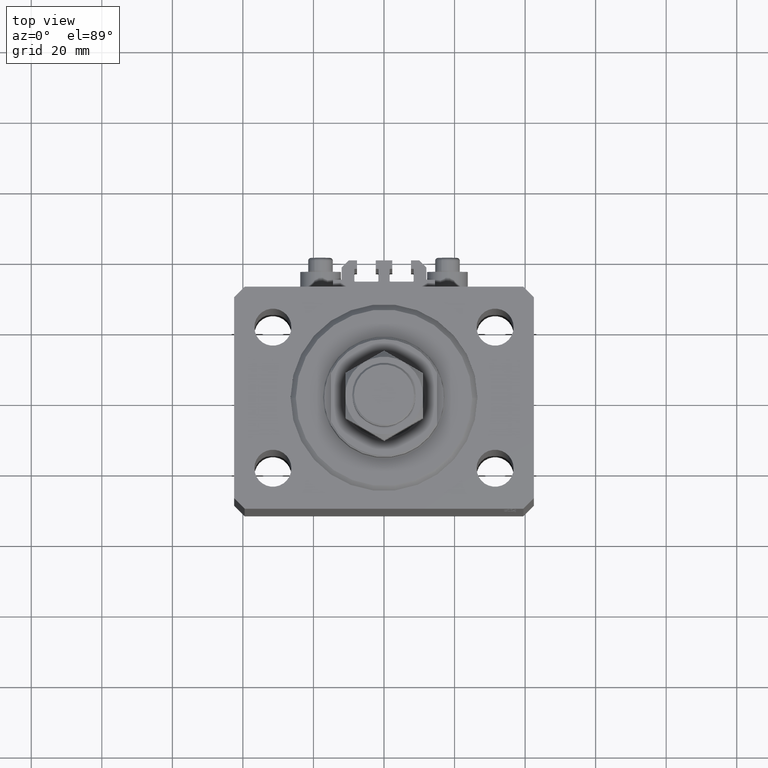
[diagram: clean part render]
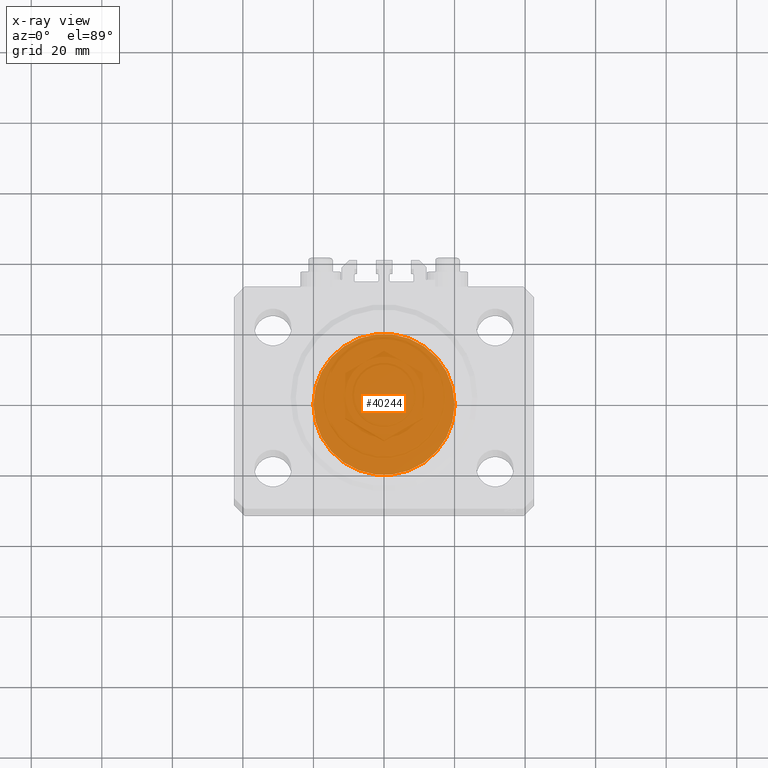
[diagram: x-ray — body ghosted, one internal face saturated and labeled with its STEP entity id]
A machine part, top view, then the same camera in x-ray: the body is ghosted and one INTERNAL B-rep face — a face not visible from any outside direction — is saturated and labeled: STEP entity #40244.
In plain terms, the highlighted planar face has unit normal (0, 0, 1).
Its self-contained STEP definition (entity closure, byte-faithful):
#1768 = CIRCLE ( 'NONE', #42906, 20.00000000000000000 ) ;
#7560 = DIRECTION ( 'NONE',  ( 1.000000000000000000, 0.000000000000000000, 0.000000000000000000 ) ) ;
#9297 = DIRECTION ( 'NONE',  ( 0.000000000000000000, 0.000000000000000000, 1.000000000000000000 ) ) ;
#9966 = DIRECTION ( 'NONE',  ( 0.000000000000000000, 0.000000000000000000, 1.000000000000000000 ) ) ;
#12233 = CARTESIAN_POINT ( 'NONE',  ( 0.000000000000000000, 0.000000000000000000, 0.000000000000000000 ) ) ;
#14378 = AXIS2_PLACEMENT_3D ( 'NONE', #20937, #9297, #36300 ) ;
#20937 = CARTESIAN_POINT ( 'NONE',  ( 0.000000000000000000, 0.000000000000000000, 0.000000000000000000 ) ) ;
#23828 = VERTEX_POINT ( 'NONE', #31077 ) ;
#23853 = EDGE_CURVE ( 'NONE', #23828, #26286, #1768, .T. ) ;
#24413 = ORIENTED_EDGE ( 'NONE', *, *, #23853, .F. ) ;
#24838 = DIRECTION ( 'NONE',  ( 1.000000000000000000, 0.000000000000000000, -0.000000000000000000 ) ) ;
#25161 = ORIENTED_EDGE ( 'NONE', *, *, #45791, .F. ) ;
#25459 = CIRCLE ( 'NONE', #14378, 20.00000000000000000 ) ;
#25574 = FACE_OUTER_BOUND ( 'NONE', #36173, .T. ) ;
#26286 = VERTEX_POINT ( 'NONE', #48679 ) ;
#28552 = PLANE ( 'NONE',  #37289 ) ;
#31077 = CARTESIAN_POINT ( 'NONE',  ( 20.00000000000000000, 2.449293598294706513E-15, 0.000000000000000000 ) ) ;
#36173 = EDGE_LOOP ( 'NONE', ( #25161, #24413 ) ) ;
#36300 = DIRECTION ( 'NONE',  ( 1.000000000000000000, 0.000000000000000000, 0.000000000000000000 ) ) ;
#37289 = AXIS2_PLACEMENT_3D ( 'NONE', #40170, #9966, #24838 ) ;
#40170 = CARTESIAN_POINT ( 'NONE',  ( 0.000000000000000000, 0.000000000000000000, 0.000000000000000000 ) ) ;
#40244 = ADVANCED_FACE ( 'NONE', ( #25574 ), #28552, .F. ) ;
#41496 = DIRECTION ( 'NONE',  ( 0.000000000000000000, 0.000000000000000000, 1.000000000000000000 ) ) ;
#42906 = AXIS2_PLACEMENT_3D ( 'NONE', #12233, #41496, #7560 ) ;
#45791 = EDGE_CURVE ( 'NONE', #26286, #23828, #25459, .T. ) ;
#48679 = CARTESIAN_POINT ( 'NONE',  ( -20.00000000000000000, 0.000000000000000000, 0.000000000000000000 ) ) ;